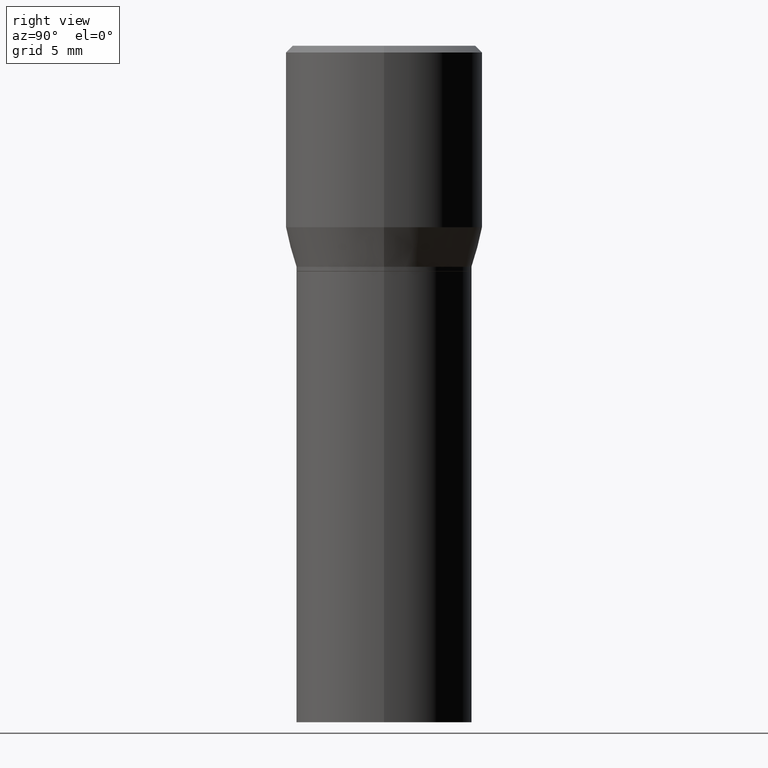
[diagram: clean part render]
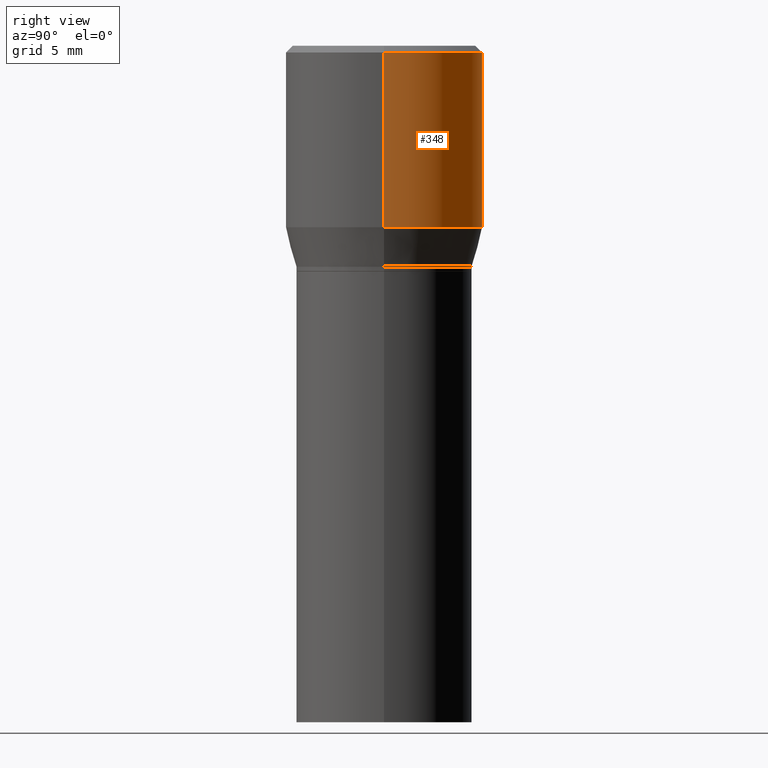
[diagram: same view with one face highlighted and labeled with its STEP entity id]
A machine part, right view. The second image highlights one B-rep face of the part: STEP entity #348.
In plain terms, the highlighted cylindrical surface (partial cylindrical patch) has radius 5.5562 mm, axis along (-0, 0, 1).
Its self-contained STEP definition (entity closure, byte-faithful):
#9 = DIRECTION ( 'NONE',  ( -2.445468806185136597E-29, 3.491481338843145583E-15, 1.000000000000000000 ) ) ;
#24 = ORIENTED_EDGE ( 'NONE', *, *, #235, .F. ) ;
#40 = AXIS2_PLACEMENT_3D ( 'NONE', #433, #9, #368 ) ;
#55 = LINE ( 'NONE', #131, #280 ) ;
#60 = ORIENTED_EDGE ( 'NONE', *, *, #324, .F. ) ;
#65 = CARTESIAN_POINT ( 'NONE',  ( 3.668203209277705088E-31, -5.237222008264718399E-17, -0.01499999999999999944 ) ) ;
#77 = CARTESIAN_POINT ( 'NONE',  ( 0.2187500000000000000, -1.579895305826517922E-15, -0.01499999999999999944 ) ) ;
#108 = DIRECTION ( 'NONE',  ( -2.445468806185136597E-29, 3.491481338843145583E-15, 1.000000000000000000 ) ) ;
#116 = EDGE_LOOP ( 'NONE', ( #370, #360, #24, #60 ) ) ;
#131 = CARTESIAN_POINT ( 'NONE',  ( -0.2187500000000000000, 1.554312234475219157E-15, -1.076017050993260622E-29 ) ) ;
#134 = EDGE_CURVE ( 'NONE', #152, #306, #55, .T. ) ;
#139 = CARTESIAN_POINT ( 'NONE',  ( 9.842606206466859638E-30, -1.405263310189985589E-15, -0.4024834085625100810 ) ) ;
#152 = VERTEX_POINT ( 'NONE', #327 ) ;
#153 = AXIS2_PLACEMENT_3D ( 'NONE', #65, #355, #361 ) ;
#158 = VECTOR ( 'NONE', #265, 39.37007874015748143 ) ;
#167 = CARTESIAN_POINT ( 'NONE',  ( 0.2187500000000000000, -2.932786395933856235E-15, -0.4024834085625100810 ) ) ;
#171 = LINE ( 'NONE', #421, #158 ) ;
#206 = FACE_OUTER_BOUND ( 'NONE', #116, .T. ) ;
#235 = EDGE_CURVE ( 'NONE', #312, #306, #292, .T. ) ;
#259 = DIRECTION ( 'NONE',  ( 1.000000000000000000, -6.982962677686266711E-15, 0.000000000000000000 ) ) ;
#265 = DIRECTION ( 'NONE',  ( -2.445468806185136877E-29, 3.491481338843145188E-15, 1.000000000000000000 ) ) ;
#268 = EDGE_CURVE ( 'NONE', #407, #152, #329, .T. ) ;
#280 = VECTOR ( 'NONE', #343, 39.37007874015748143 ) ;
#292 = CIRCLE ( 'NONE', #153, 0.2187500000000000000 ) ;
#306 = VERTEX_POINT ( 'NONE', #367 ) ;
#312 = VERTEX_POINT ( 'NONE', #77 ) ;
#324 = EDGE_CURVE ( 'NONE', #407, #312, #171, .T. ) ;
#327 = CARTESIAN_POINT ( 'NONE',  ( -0.2187500000000000000, 1.490489242852337896E-16, -0.4024834085625100810 ) ) ;
#329 = CIRCLE ( 'NONE', #422, 0.2187500000000000000 ) ;
#336 = CYLINDRICAL_SURFACE ( 'NONE', #40, 0.2187500000000000000 ) ;
#343 = DIRECTION ( 'NONE',  ( -2.445468806185136877E-29, 3.491481338843145188E-15, 1.000000000000000000 ) ) ;
#348 = ADVANCED_FACE ( 'NONE', ( #206 ), #336, .T. ) ;
#355 = DIRECTION ( 'NONE',  ( -2.445468806185136597E-29, 3.491481338843145583E-15, 1.000000000000000000 ) ) ;
#360 = ORIENTED_EDGE ( 'NONE', *, *, #134, .T. ) ;
#361 = DIRECTION ( 'NONE',  ( 1.000000000000000000, -6.982962677686266711E-15, 0.000000000000000000 ) ) ;
#367 = CARTESIAN_POINT ( 'NONE',  ( -0.2187500000000000000, 8.254944693389027239E-16, -0.01499999999999999944 ) ) ;
#368 = DIRECTION ( 'NONE',  ( 1.000000000000000000, -6.982962677686266711E-15, 4.876176775795935232E-29 ) ) ;
#370 = ORIENTED_EDGE ( 'NONE', *, *, #268, .T. ) ;
#407 = VERTEX_POINT ( 'NONE', #167 ) ;
#421 = CARTESIAN_POINT ( 'NONE',  ( 0.2187500000000000000, -1.527523085743870843E-15, 1.066663669705360885E-29 ) ) ;
#422 = AXIS2_PLACEMENT_3D ( 'NONE', #139, #108, #259 ) ;
#433 = CARTESIAN_POINT ( 'NONE',  ( 0.000000000000000000, 0.000000000000000000, 0.000000000000000000 ) ) ;